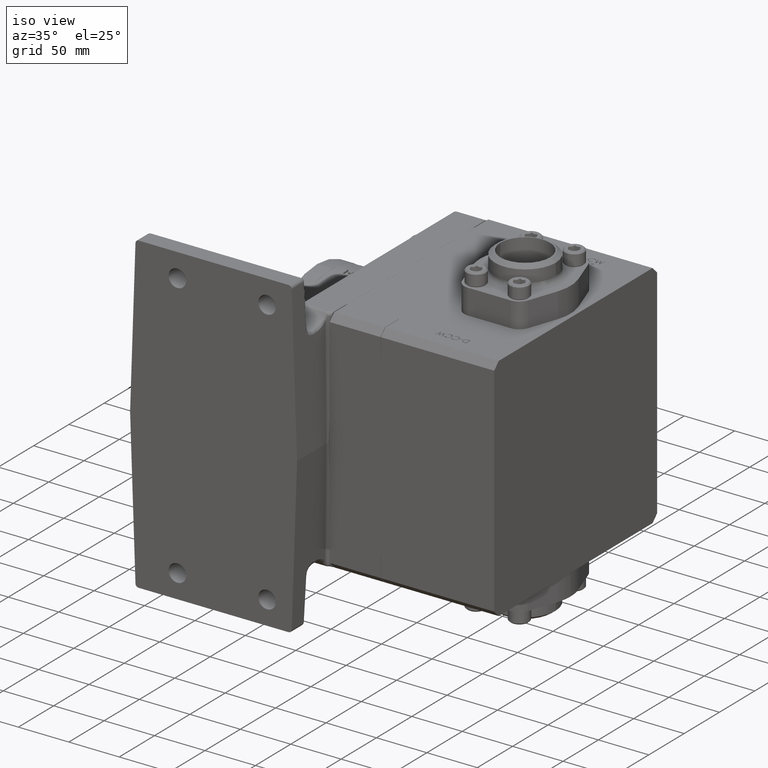
[diagram: clean part render]
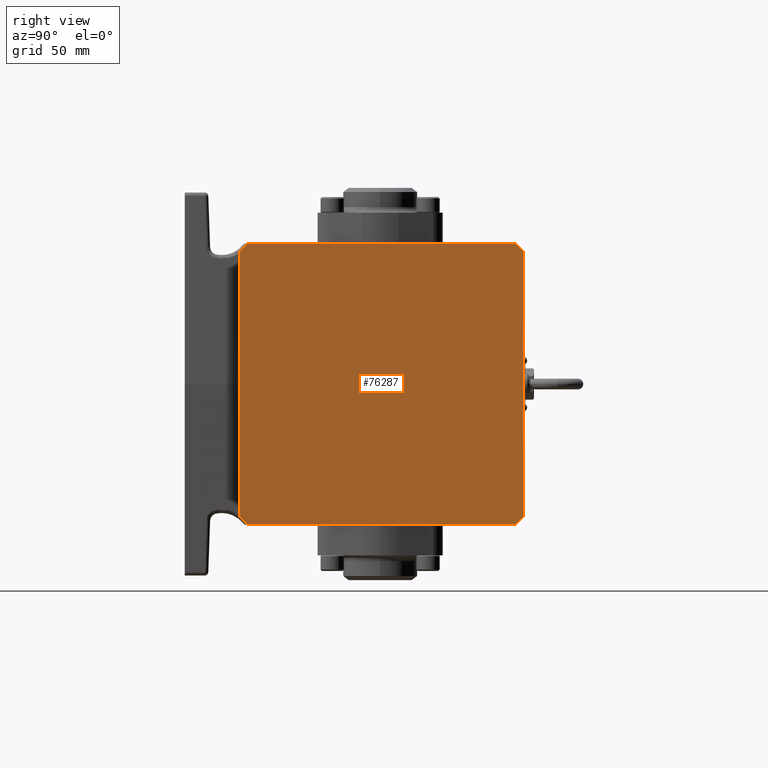
[diagram: tour spotlight — one face highlighted and labeled with its STEP entity id]
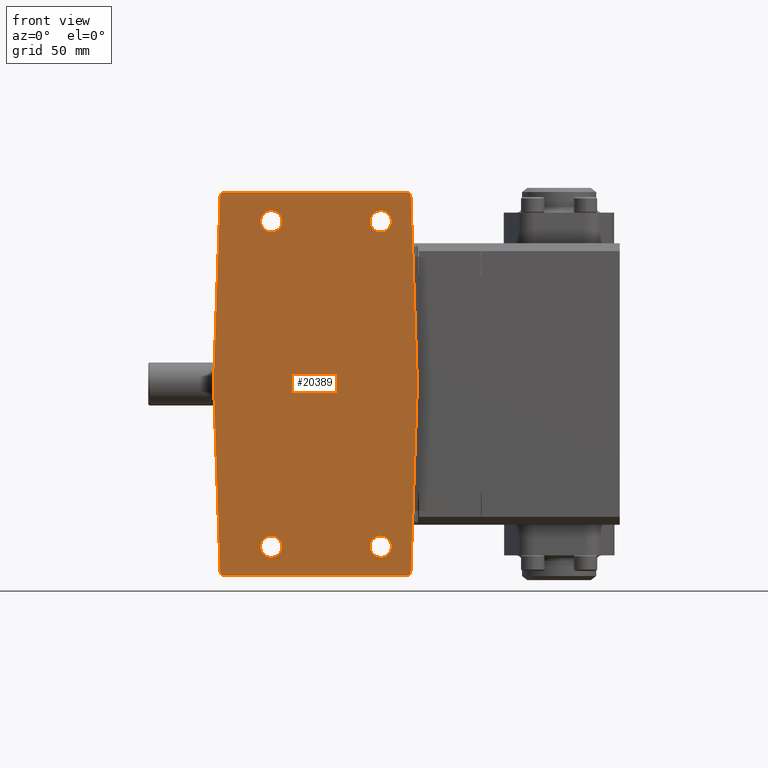
[diagram: tour spotlight — one face highlighted and labeled with its STEP entity id]
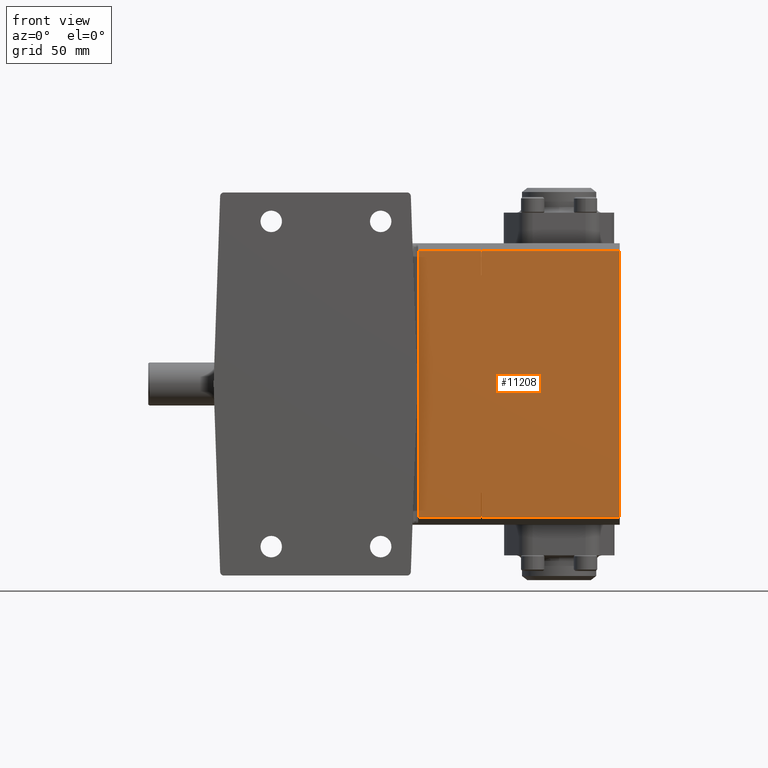
[diagram: tour spotlight — one face highlighted and labeled with its STEP entity id]
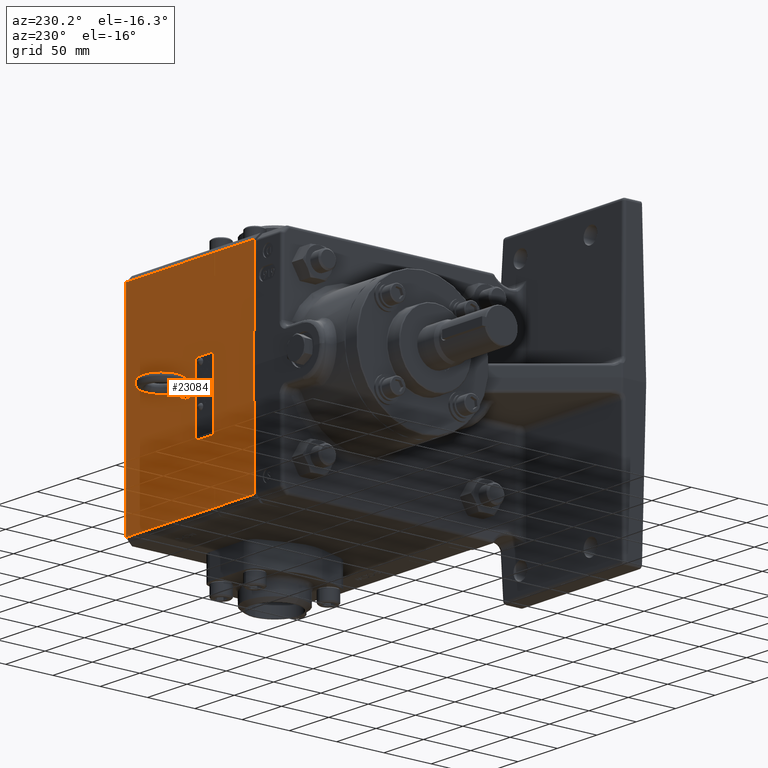
[diagram: tour spotlight — one face highlighted and labeled with its STEP entity id]
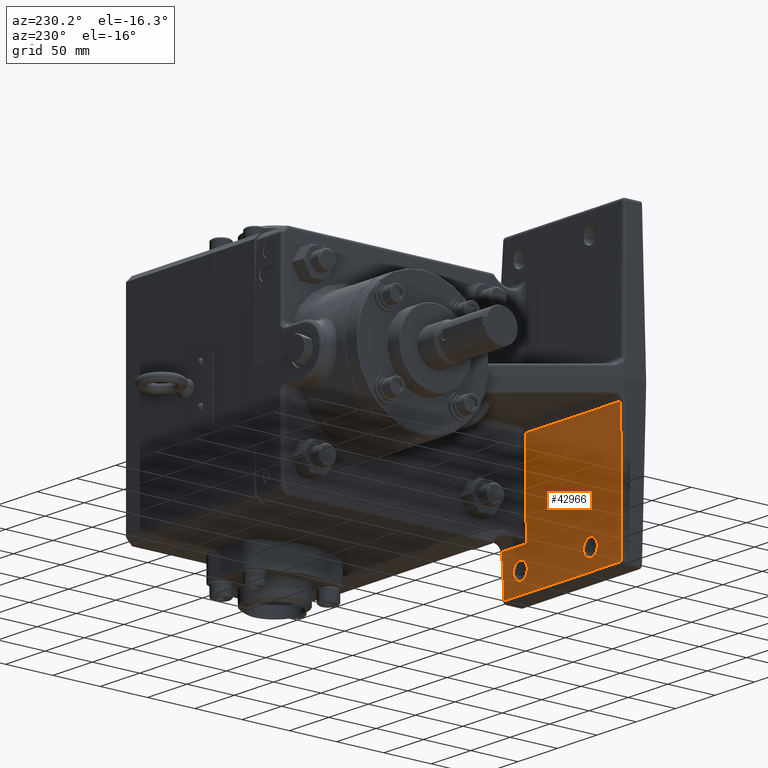
[diagram: tour spotlight — one face highlighted and labeled with its STEP entity id]
A machine part: a face-by-face anatomy tour. The part has 1905 B-rep faces; the first image is the clean iso view, then the 5 largest visible faces are spotlighted one at a time (largest first), each with its STEP entity span.

Face 1 — right view, entity #76287. In plain terms, the highlighted planar face has unit normal (1, 0, 0).
Definition (entity closure, byte-faithful):
#2612 = CARTESIAN_POINT ( 'NONE',  ( 6.434500000000001700, 3.079999999999999200, -4.249999999999998200 ) ) ;
#7589 = VERTEX_POINT ( 'NONE', #32884 ) ;
#8641 = CARTESIAN_POINT ( 'NONE',  ( 6.434500000000001700, -5.999999999999999100, -4.249999999999998200 ) ) ;
#9835 = VECTOR ( 'NONE', #26408, 39.37007874015748900 ) ;
#10267 = VECTOR ( 'NONE', #94038, 39.37007874015748100 ) ;
#16767 = CARTESIAN_POINT ( 'NONE',  ( 6.434500000000001700, 3.079999999999999200, 4.250000000000001800 ) ) ;
#16867 = ORIENTED_EDGE ( 'NONE', *, *, #94484, .T. ) ;
#16973 = DIRECTION ( 'NONE',  ( -0.0000000000000000000, 1.000000000000000000, -0.0000000000000000000 ) ) ;
#18905 = VECTOR ( 'NONE', #24239, 39.37007874015748900 ) ;
#19349 = EDGE_CURVE ( 'Defeatured_0_963+Defeatured_0_1085+Defeatured_0_842+Defeatured_0_840', #82032, #86548, #74199, .T. ) ;
#24239 = DIRECTION ( 'NONE',  ( 0.0000000000000000000, 0.7071067811865497900, 0.7071067811865451300 ) ) ;
#24385 = DIRECTION ( 'NONE',  ( -0.0000000000000000000, -0.0000000000000000000, 1.000000000000000000 ) ) ;
#25834 = LINE ( 'NONE', #61149, #83699 ) ;
#26408 = DIRECTION ( 'NONE',  ( 0.0000000000000000000, -0.7071067811865459100, -0.7071067811865490200 ) ) ;
#28173 = ORIENTED_EDGE ( 'NONE', *, *, #68953, .T. ) ;
#28625 = EDGE_CURVE ( 'Defeatured_0_963+Defeatured_0_964+Defeatured_0_0+Defeatured_0_837', #74707, #34177, #58742, .T. ) ;
#29122 = VECTOR ( 'NONE', #24385, 39.37007874015748100 ) ;
#29909 = CARTESIAN_POINT ( 'NONE',  ( 6.434500000000001700, -1.460000000000000900, 8.790000000000020500 ) ) ;
#30396 = LINE ( 'NONE', #92498, #9835 ) ;
#32884 = CARTESIAN_POINT ( 'NONE',  ( 6.434500000000001700, -5.750000000000000900, 4.500000000000000000 ) ) ;
#33023 = CARTESIAN_POINT ( 'NONE',  ( 6.434500000000001700, -5.999999999999999100, -4.249999999999998200 ) ) ;
#34177 = VERTEX_POINT ( 'NONE', #83659 ) ;
#34820 = CARTESIAN_POINT ( 'NONE',  ( 6.434500000000001700, -5.749999999999996400, -4.500000000000000000 ) ) ;
#36098 = AXIS2_PLACEMENT_3D ( 'NONE', #29909, #100021, #92195 ) ;
#39382 = CARTESIAN_POINT ( 'NONE',  ( 6.434500000000001700, 2.829999999999996500, -4.500000000000000000 ) ) ;
#40377 = LINE ( 'NONE', #39382, #63244 ) ;
#40782 = LINE ( 'NONE', #79133, #18905 ) ;
#41646 = CARTESIAN_POINT ( 'NONE',  ( 6.434500000000001700, 3.079999999999999200, 4.250000000000001800 ) ) ;
#41994 = DIRECTION ( 'NONE',  ( 0.0000000000000000000, -0.7071067811865459100, 0.7071067811865490200 ) ) ;
#42756 = VERTEX_POINT ( 'NONE', #49086 ) ;
#43680 = VECTOR ( 'NONE', #84204, 39.37007874015748100 ) ;
#45709 = CARTESIAN_POINT ( 'NONE',  ( 6.434500000000001700, -5.999999999999999100, -4.249999999999998200 ) ) ;
#49086 = CARTESIAN_POINT ( 'NONE',  ( 6.434500000000001700, -6.000000000000001800, 4.249999999999999100 ) ) ;
#53337 = ORIENTED_EDGE ( 'NONE', *, *, #80829, .T. ) ;
#58742 = LINE ( 'NONE', #41646, #91272 ) ;
#61149 = CARTESIAN_POINT ( 'NONE',  ( 6.434500000000001700, 2.830000000000001800, 4.500000000000000000 ) ) ;
#61241 = PLANE ( 'NONE',  #36098 ) ;
#62238 = VERTEX_POINT ( 'NONE', #91287 ) ;
#62891 = LINE ( 'NONE', #78952, #29122 ) ;
#63244 = VECTOR ( 'NONE', #16973, 39.37007874015748100 ) ;
#63828 = EDGE_CURVE ( 'Defeatured_0_963+Defeatured_0_962+Defeatured_0_837+Defeatured_0_842', #7589, #42756, #30396, .T. ) ;
#64125 = LINE ( 'NONE', #8641, #43680 ) ;
#66005 = VERTEX_POINT ( 'NONE', #2612 ) ;
#68953 = EDGE_CURVE ( 'Defeatured_0_963+Defeatured_0_837+Defeatured_0_964+Defeatured_0_962', #34177, #7589, #25834, .T. ) ;
#69850 = DIRECTION ( 'NONE',  ( 0.0000000000000000000, -1.000000000000000000, 0.0000000000000000000 ) ) ;
#71922 = EDGE_LOOP ( 'NONE', ( #85012, #28173, #84895, #91881, #94061, #16867, #75060, #53337 ) ) ;
#72559 = EDGE_CURVE ( 'Defeatured_0_963+Defeatured_0_1079+Defeatured_0_840+Defeatured_0_0', #62238, #66005, #40782, .T. ) ;
#74199 = LINE ( 'NONE', #33023, #10267 ) ;
#74707 = VERTEX_POINT ( 'NONE', #16767 ) ;
#75060 = ORIENTED_EDGE ( 'NONE', *, *, #72559, .T. ) ;
#76287 = ADVANCED_FACE ( 'Defeatured_0_963', ( #98172 ), #61241, .T. ) ;
#78952 = CARTESIAN_POINT ( 'NONE',  ( 6.434500000000001700, 3.079999999999999200, 4.250000000000001800 ) ) ;
#79133 = CARTESIAN_POINT ( 'NONE',  ( 6.434500000000001700, 2.829999999999996500, -4.500000000000000000 ) ) ;
#80829 = EDGE_CURVE ( 'Defeatured_0_963+Defeatured_0_0+Defeatured_0_1079+Defeatured_0_964', #66005, #74707, #62891, .T. ) ;
#82032 = VERTEX_POINT ( 'NONE', #45709 ) ;
#83659 = CARTESIAN_POINT ( 'NONE',  ( 6.434500000000001700, 2.830000000000001800, 4.500000000000000000 ) ) ;
#83699 = VECTOR ( 'NONE', #69850, 39.37007874015748100 ) ;
#84204 = DIRECTION ( 'NONE',  ( -0.0000000000000000000, 1.285575526430241900E-016, -1.000000000000000000 ) ) ;
#84795 = EDGE_CURVE ( 'Defeatured_0_963+Defeatured_0_842+Defeatured_0_962+Defeatured_0_1085', #42756, #82032, #64125, .T. ) ;
#84895 = ORIENTED_EDGE ( 'NONE', *, *, #63828, .T. ) ;
#85012 = ORIENTED_EDGE ( 'NONE', *, *, #28625, .T. ) ;
#86548 = VERTEX_POINT ( 'NONE', #34820 ) ;
#91272 = VECTOR ( 'NONE', #41994, 39.37007874015748900 ) ;
#91287 = CARTESIAN_POINT ( 'NONE',  ( 6.434500000000001700, 2.829999999999996500, -4.500000000000000000 ) ) ;
#91881 = ORIENTED_EDGE ( 'NONE', *, *, #84795, .T. ) ;
#92195 = DIRECTION ( 'NONE',  ( 0.0000000000000000000, 0.0000000000000000000, -1.000000000000000000 ) ) ;
#92498 = CARTESIAN_POINT ( 'NONE',  ( 6.434500000000001700, -5.750000000000000900, 4.500000000000000000 ) ) ;
#94038 = DIRECTION ( 'NONE',  ( 0.0000000000000000000, 0.7071067811865490200, -0.7071067811865460200 ) ) ;
#94061 = ORIENTED_EDGE ( 'NONE', *, *, #19349, .T. ) ;
#94484 = EDGE_CURVE ( 'Defeatured_0_963+Defeatured_0_840+Defeatured_0_1085+Defeatured_0_1079', #86548, #62238, #40377, .T. ) ;
#98172 = FACE_OUTER_BOUND ( 'NONE', #71922, .T. ) ;
#100021 = DIRECTION ( 'NONE',  ( 1.000000000000000000, 0.0000000000000000000, 0.0000000000000000000 ) ) ;

Face 2 — front view, entity #20389. In plain terms, the highlighted planar face has unit normal (-0, 1, 0).
Definition (entity closure, byte-faithful):
#87 = AXIS2_PLACEMENT_3D ( 'NONE', #39778, #55225, #32295 ) ;
#501 = EDGE_CURVE ( 'Defeatured_0_1671+Defeatured_0_845+Defeatured_0_845+Defeatured_0_845', #35023, #36547, #44396, .T. ) ;
#806 = VERTEX_POINT ( 'NONE', #31280 ) ;
#2040 = DIRECTION ( 'NONE',  ( -0.0000000000000000000, -1.000000000000000000, -0.0000000000000000000 ) ) ;
#2259 = EDGE_CURVE ( 'Defeatured_0_1673+Defeatured_0_845+Defeatured_0_845+Defeatured_0_845', #9334, #36012, #31691, .T. ) ;
#2339 = AXIS2_PLACEMENT_3D ( 'NONE', #90994, #91339, #75813 ) ;
#2768 = CIRCLE ( 'NONE', #24458, 0.3437499999999998300 ) ;
#3049 = ORIENTED_EDGE ( 'NONE', *, *, #72982, .T. ) ;
#3416 = ORIENTED_EDGE ( 'NONE', *, *, #49282, .T. ) ;
#3967 = VECTOR ( 'NONE', #89806, 39.37007874015748100 ) ;
#4501 = CARTESIAN_POINT ( 'NONE',  ( -8.118642960852330500, -7.750000000000000000, -6.125000000000000000 ) ) ;
#5442 = AXIS2_PLACEMENT_3D ( 'NONE', #97683, #89519, #89196 ) ;
#5796 = ORIENTED_EDGE ( 'NONE', *, *, #73551, .F. ) ;
#6552 = LINE ( 'NONE', #70355, #12612 ) ;
#6746 = LINE ( 'NONE', #19564, #86414 ) ;
#7645 = EDGE_LOOP ( 'NONE', ( #33487, #20993 ) ) ;
#9334 = VERTEX_POINT ( 'NONE', #60141 ) ;
#10304 = AXIS2_PLACEMENT_3D ( 'NONE', #37037, #97686, #51811 ) ;
#11297 = AXIS2_PLACEMENT_3D ( 'NONE', #65506, #27772, #42672 ) ;
#12612 = VECTOR ( 'NONE', #15755, 39.37007874015748100 ) ;
#13441 = CARTESIAN_POINT ( 'NONE',  ( -0.3658826529768486900, -7.750000000000000000, 6.004999999999999900 ) ) ;
#13527 = CARTESIAN_POINT ( 'NONE',  ( -4.710000000000000000, -7.750000000000000000, 5.200000000000000200 ) ) ;
#14720 = EDGE_CURVE ( 'Defeatured_0_845+Defeatured_0_1205+Defeatured_0_1204+Defeatured_0_1206', #51747, #97066, #50669, .T. ) ;
#15348 = DIRECTION ( 'NONE',  ( 0.0000000000000000000, -1.000000000000000000, -0.0000000000000000000 ) ) ;
#15421 = AXIS2_PLACEMENT_3D ( 'NONE', #64395, #2040, #80193 ) ;
#15755 = DIRECTION ( 'NONE',  ( -0.03489949670250104600, 0.0000000000000000000, -0.9993908270190957600 ) ) ;
#16278 = VERTEX_POINT ( 'NONE', #34554 ) ;
#16443 = VECTOR ( 'NONE', #34079, 39.37007874015748100 ) ;
#16544 = EDGE_CURVE ( 'Defeatured_0_845+Defeatured_0_848+Defeatured_0_786+Defeatured_0_1201', #63685, #21498, #61124, .T. ) ;
#16737 = CARTESIAN_POINT ( 'NONE',  ( -1.210000000000000000, -7.750000000000000000, -5.543750000000000200 ) ) ;
#17379 = CARTESIAN_POINT ( 'NONE',  ( -4.710000000000000000, -7.750000000000000000, -5.543750000000000200 ) ) ;
#17829 = CARTESIAN_POINT ( 'NONE',  ( -8.118642960852330500, -7.750000000000000000, 6.125000000000000000 ) ) ;
#18901 = VERTEX_POINT ( 'NONE', #64799 ) ;
#19564 = CARTESIAN_POINT ( 'NONE',  ( -0.2499999999999998100, -7.750000000000000000, -6.125000000000000000 ) ) ;
#20371 = ORIENTED_EDGE ( 'NONE', *, *, #85819, .T. ) ;
#20389 = ADVANCED_FACE ( 'Defeatured_0_845', ( #86046, #55954, #94548, #76382, #49955 ), #90907, .F. ) ;
#20993 = ORIENTED_EDGE ( 'NONE', *, *, #2259, .F. ) ;
#21498 = VERTEX_POINT ( 'NONE', #45988 ) ;
#22276 = CARTESIAN_POINT ( 'NONE',  ( -1.209999999999999700, -7.750000000000000000, 4.856250000000000200 ) ) ;
#23557 = CARTESIAN_POINT ( 'NONE',  ( -0.2459557537345572200, -7.750000000000000000, -6.009187939604300900 ) ) ;
#24024 = EDGE_CURVE ( 'Defeatured_0_845+Defeatured_0_787+Defeatured_0_849+Defeatured_0_786', #87687, #82800, #6746, .T. ) ;
#24458 = AXIS2_PLACEMENT_3D ( 'NONE', #66730, #90634, #28322 ) ;
#24617 = CIRCLE ( 'NONE', #10304, 0.3437499999999998300 ) ;
#25634 = DIRECTION ( 'NONE',  ( -0.03489949670250104600, -0.0000000000000000000, 0.9993908270190957600 ) ) ;
#25787 = ORIENTED_EDGE ( 'NONE', *, *, #82721, .T. ) ;
#26057 = VECTOR ( 'NONE', #33863, 39.37007874015748100 ) ;
#27530 = CIRCLE ( 'NONE', #15421, 0.3437499999999998300 ) ;
#27772 = DIRECTION ( 'NONE',  ( -0.0000000000000000000, -1.000000000000000000, -0.0000000000000000000 ) ) ;
#27901 = AXIS2_PLACEMENT_3D ( 'NONE', #61912, #15348, #38044 ) ;
#28260 = CARTESIAN_POINT ( 'NONE',  ( -8.118642960852330500, -7.750000000000000000, -6.125000000000000000 ) ) ;
#28322 = DIRECTION ( 'NONE',  ( 0.0000000000000000000, 0.0000000000000000000, -1.000000000000000000 ) ) ;
#28423 = CIRCLE ( 'NONE', #87, 0.1199999999999998200 ) ;
#29300 = VERTEX_POINT ( 'NONE', #36315 ) ;
#31280 = CARTESIAN_POINT ( 'NONE',  ( -1.210000000000000000, -7.750000000000000000, -4.856250000000000200 ) ) ;
#31691 = CIRCLE ( 'NONE', #5442, 0.3437499999999998300 ) ;
#32295 = DIRECTION ( 'NONE',  ( 0.0000000000000000000, 0.0000000000000000000, 1.000000000000000000 ) ) ;
#33487 = ORIENTED_EDGE ( 'NONE', *, *, #61511, .F. ) ;
#33863 = DIRECTION ( 'NONE',  ( 0.03489949670250104600, 0.0000000000000000000, -0.9993908270190957600 ) ) ;
#34079 = DIRECTION ( 'NONE',  ( -1.000000000000000000, -0.0000000000000000000, -0.0000000000000000000 ) ) ;
#34554 = CARTESIAN_POINT ( 'NONE',  ( -6.344044246265442100, -7.750000000000000000, 6.009187939604300900 ) ) ;
#34848 = DIRECTION ( 'NONE',  ( 0.03489949670250104600, 0.0000000000000000000, 0.9993908270190957600 ) ) ;
#35023 = VERTEX_POINT ( 'NONE', #77116 ) ;
#35105 = EDGE_LOOP ( 'NONE', ( #47908, #25787, #3049, #40319, #40919, #66084, #91049, #20371, #58116, #3416 ) ) ;
#36012 = VERTEX_POINT ( 'NONE', #22276 ) ;
#36315 = CARTESIAN_POINT ( 'NONE',  ( -6.553889713136954700, -7.750000000000000000, 1.092739197465705300E-015 ) ) ;
#36547 = VERTEX_POINT ( 'NONE', #17379 ) ;
#36731 = CIRCLE ( 'NONE', #2339, 0.3437499999999998300 ) ;
#37037 = CARTESIAN_POINT ( 'NONE',  ( -1.210000000000000000, -7.750000000000000000, -5.200000000000000200 ) ) ;
#37110 = LINE ( 'NONE', #17829, #16443 ) ;
#37360 = EDGE_CURVE ( 'Defeatured_0_845+Defeatured_0_1203+Defeatured_0_1202+Defeatured_0_1204', #16278, #29300, #6552, .T. ) ;
#37896 = LINE ( 'NONE', #55692, #41485 ) ;
#38044 = DIRECTION ( 'NONE',  ( 0.0000000000000000000, 0.0000000000000000000, 1.000000000000000000 ) ) ;
#39778 = CARTESIAN_POINT ( 'NONE',  ( -6.224117347023150300, -7.750000000000000000, 6.004999999999999900 ) ) ;
#40054 = ORIENTED_EDGE ( 'NONE', *, *, #501, .F. ) ;
#40077 = VERTEX_POINT ( 'NONE', #79507 ) ;
#40319 = ORIENTED_EDGE ( 'NONE', *, *, #37360, .T. ) ;
#40504 = VERTEX_POINT ( 'NONE', #47775 ) ;
#40919 = ORIENTED_EDGE ( 'NONE', *, *, #91714, .T. ) ;
#41245 = EDGE_LOOP ( 'NONE', ( #80457, #40054 ) ) ;
#41485 = VECTOR ( 'NONE', #25634, 39.37007874015748100 ) ;
#42513 = CARTESIAN_POINT ( 'NONE',  ( -4.710000000000000000, -7.750000000000000000, -5.200000000000000200 ) ) ;
#42672 = DIRECTION ( 'NONE',  ( 0.0000000000000000000, 0.0000000000000000000, -1.000000000000000000 ) ) ;
#42854 = EDGE_CURVE ( 'Defeatured_0_1674+Defeatured_0_845+Defeatured_0_845+Defeatured_0_845', #40504, #40077, #91918, .T. ) ;
#44160 = DIRECTION ( 'NONE',  ( 0.0000000000000000000, -0.0000000000000000000, 1.000000000000000000 ) ) ;
#44396 = CIRCLE ( 'NONE', #68685, 0.3437499999999998300 ) ;
#45988 = CARTESIAN_POINT ( 'NONE',  ( -0.3658826529768486900, -7.750000000000000000, 6.125000000000000000 ) ) ;
#46107 = EDGE_LOOP ( 'NONE', ( #95489, #98663 ) ) ;
#46565 = LINE ( 'NONE', #79924, #26057 ) ;
#47775 = CARTESIAN_POINT ( 'NONE',  ( -4.710000000000000000, -7.750000000000000000, 4.856250000000000200 ) ) ;
#47908 = ORIENTED_EDGE ( 'NONE', *, *, #16544, .T. ) ;
#49282 = EDGE_CURVE ( 'Defeatured_0_845+Defeatured_0_786+Defeatured_0_787+Defeatured_0_848', #82800, #63685, #37896, .T. ) ;
#49955 = FACE_OUTER_BOUND ( 'NONE', #35105, .T. ) ;
#50669 = CIRCLE ( 'NONE', #96113, 0.1199999999999998200 ) ;
#51072 = AXIS2_PLACEMENT_3D ( 'NONE', #13441, #59672, #60016 ) ;
#51747 = VERTEX_POINT ( 'NONE', #74004 ) ;
#51811 = DIRECTION ( 'NONE',  ( 0.0000000000000000000, 0.0000000000000000000, -1.000000000000000000 ) ) ;
#53961 = VERTEX_POINT ( 'NONE', #16737 ) ;
#55225 = DIRECTION ( 'NONE',  ( 0.0000000000000000000, -1.000000000000000000, -0.0000000000000000000 ) ) ;
#55692 = CARTESIAN_POINT ( 'NONE',  ( -0.2499999999999998100, -7.750000000000000000, 6.125000000000000000 ) ) ;
#55954 = FACE_BOUND ( 'NONE', #41245, .T. ) ;
#58116 = ORIENTED_EDGE ( 'NONE', *, *, #24024, .T. ) ;
#59672 = DIRECTION ( 'NONE',  ( 0.0000000000000000000, -1.000000000000000000, -0.0000000000000000000 ) ) ;
#60016 = DIRECTION ( 'NONE',  ( -1.138269997360111400E-015, 0.0000000000000000000, 1.000000000000000000 ) ) ;
#60141 = CARTESIAN_POINT ( 'NONE',  ( -1.209999999999999700, -7.750000000000000000, 5.543750000000000200 ) ) ;
#61124 = CIRCLE ( 'NONE', #51072, 0.1199999999999998200 ) ;
#61511 = EDGE_CURVE ( 'Defeatured_0_1673+Defeatured_0_845+Defeatured_0_845+Defeatured_0_845', #36012, #9334, #2768, .T. ) ;
#61912 = CARTESIAN_POINT ( 'NONE',  ( -0.3658826529768486900, -7.750000000000000000, -6.004999999999999900 ) ) ;
#63685 = VERTEX_POINT ( 'NONE', #65368 ) ;
#64386 = VERTEX_POINT ( 'NONE', #69361 ) ;
#64395 = CARTESIAN_POINT ( 'NONE',  ( -4.710000000000000000, -7.750000000000000000, -5.200000000000000200 ) ) ;
#64799 = CARTESIAN_POINT ( 'NONE',  ( -6.224117347023150300, -7.750000000000000000, 6.125000000000000000 ) ) ;
#64812 = AXIS2_PLACEMENT_3D ( 'NONE', #13527, #74545, #67473 ) ;
#65368 = CARTESIAN_POINT ( 'NONE',  ( -0.2459557537345572200, -7.750000000000000000, 6.009187939604300900 ) ) ;
#65506 = CARTESIAN_POINT ( 'NONE',  ( -4.710000000000000000, -7.750000000000000000, 5.200000000000000200 ) ) ;
#65701 = EDGE_LOOP ( 'NONE', ( #79396, #5796 ) ) ;
#65734 = CIRCLE ( 'NONE', #64812, 0.3437499999999998300 ) ;
#66084 = ORIENTED_EDGE ( 'NONE', *, *, #14720, .T. ) ;
#66350 = CARTESIAN_POINT ( 'NONE',  ( -6.224117347023150300, -7.750000000000000000, -6.125000000000000000 ) ) ;
#66730 = CARTESIAN_POINT ( 'NONE',  ( -1.209999999999999700, -7.750000000000000000, 5.200000000000000200 ) ) ;
#67473 = DIRECTION ( 'NONE',  ( 0.0000000000000000000, 0.0000000000000000000, -1.000000000000000000 ) ) ;
#68685 = AXIS2_PLACEMENT_3D ( 'NONE', #42513, #96421, #80816 ) ;
#69361 = CARTESIAN_POINT ( 'NONE',  ( -0.3658826529768486900, -7.750000000000000000, -6.125000000000000000 ) ) ;
#69469 = AXIS2_PLACEMENT_3D ( 'NONE', #28260, #97738, #44160 ) ;
#70355 = CARTESIAN_POINT ( 'NONE',  ( -6.339999999999999900, -7.750000000000000000, 6.125000000000000000 ) ) ;
#72982 = EDGE_CURVE ( 'Defeatured_0_845+Defeatured_0_1202+Defeatured_0_1201+Defeatured_0_1203', #18901, #16278, #28423, .T. ) ;
#73551 = EDGE_CURVE ( 'Defeatured_0_1674+Defeatured_0_845+Defeatured_0_845+Defeatured_0_845', #40077, #40504, #65734, .T. ) ;
#74004 = CARTESIAN_POINT ( 'NONE',  ( -6.344044246265442100, -7.750000000000000000, -6.009187939604300900 ) ) ;
#74545 = DIRECTION ( 'NONE',  ( -0.0000000000000000000, -1.000000000000000000, -0.0000000000000000000 ) ) ;
#75813 = DIRECTION ( 'NONE',  ( 0.0000000000000000000, 0.0000000000000000000, -1.000000000000000000 ) ) ;
#76382 = FACE_BOUND ( 'NONE', #7645, .T. ) ;
#77116 = CARTESIAN_POINT ( 'NONE',  ( -4.710000000000000000, -7.750000000000000000, -4.856250000000000200 ) ) ;
#78749 = EDGE_CURVE ( 'Defeatured_0_1671+Defeatured_0_845+Defeatured_0_845+Defeatured_0_845', #36547, #35023, #27530, .T. ) ;
#79396 = ORIENTED_EDGE ( 'NONE', *, *, #42854, .F. ) ;
#79507 = CARTESIAN_POINT ( 'NONE',  ( -4.710000000000000000, -7.750000000000000000, 5.543750000000000200 ) ) ;
#79548 = CARTESIAN_POINT ( 'NONE',  ( -6.224117347023150300, -7.750000000000000000, -6.004999999999999900 ) ) ;
#79611 = EDGE_CURVE ( 'Defeatured_0_1206+Defeatured_0_845+Defeatured_0_849+Defeatured_0_1205', #64386, #97066, #93291, .T. ) ;
#79924 = CARTESIAN_POINT ( 'NONE',  ( -6.339999999999999900, -7.750000000000000000, -6.125000000000000000 ) ) ;
#80193 = DIRECTION ( 'NONE',  ( 0.0000000000000000000, 0.0000000000000000000, -1.000000000000000000 ) ) ;
#80457 = ORIENTED_EDGE ( 'NONE', *, *, #78749, .F. ) ;
#80714 = CIRCLE ( 'NONE', #27901, 0.1199999999999998200 ) ;
#80816 = DIRECTION ( 'NONE',  ( 0.0000000000000000000, 0.0000000000000000000, -1.000000000000000000 ) ) ;
#82721 = EDGE_CURVE ( 'Defeatured_0_845+Defeatured_0_1201+Defeatured_0_848+Defeatured_0_1202', #21498, #18901, #37110, .T. ) ;
#82800 = VERTEX_POINT ( 'NONE', #89942 ) ;
#83923 = EDGE_CURVE ( 'Defeatured_0_1672+Defeatured_0_845+Defeatured_0_845+Defeatured_0_845', #806, #53961, #24617, .T. ) ;
#85819 = EDGE_CURVE ( 'Defeatured_0_845+Defeatured_0_849+Defeatured_0_1206+Defeatured_0_787', #64386, #87687, #80714, .T. ) ;
#86046 = FACE_BOUND ( 'NONE', #46107, .T. ) ;
#86414 = VECTOR ( 'NONE', #34848, 39.37007874015748100 ) ;
#87687 = VERTEX_POINT ( 'NONE', #23557 ) ;
#87990 = DIRECTION ( 'NONE',  ( 0.0000000000000000000, 0.0000000000000000000, 1.000000000000000000 ) ) ;
#89196 = DIRECTION ( 'NONE',  ( 0.0000000000000000000, 0.0000000000000000000, -1.000000000000000000 ) ) ;
#89519 = DIRECTION ( 'NONE',  ( -0.0000000000000000000, -1.000000000000000000, -0.0000000000000000000 ) ) ;
#89806 = DIRECTION ( 'NONE',  ( -1.000000000000000000, -0.0000000000000000000, -0.0000000000000000000 ) ) ;
#89942 = CARTESIAN_POINT ( 'NONE',  ( -0.03611028686304448100, -7.750000000000000000, 1.092739197465705300E-015 ) ) ;
#90634 = DIRECTION ( 'NONE',  ( -0.0000000000000000000, -1.000000000000000000, -0.0000000000000000000 ) ) ;
#90907 = PLANE ( 'NONE',  #69469 ) ;
#90994 = CARTESIAN_POINT ( 'NONE',  ( -1.210000000000000000, -7.750000000000000000, -5.200000000000000200 ) ) ;
#91049 = ORIENTED_EDGE ( 'NONE', *, *, #79611, .F. ) ;
#91339 = DIRECTION ( 'NONE',  ( -0.0000000000000000000, -1.000000000000000000, -0.0000000000000000000 ) ) ;
#91714 = EDGE_CURVE ( 'Defeatured_0_845+Defeatured_0_1204+Defeatured_0_1203+Defeatured_0_1205', #29300, #51747, #46565, .T. ) ;
#91918 = CIRCLE ( 'NONE', #11297, 0.3437499999999998300 ) ;
#93291 = LINE ( 'NONE', #4501, #3967 ) ;
#94548 = FACE_BOUND ( 'NONE', #65701, .T. ) ;
#95165 = DIRECTION ( 'NONE',  ( 0.0000000000000000000, -1.000000000000000000, -0.0000000000000000000 ) ) ;
#95489 = ORIENTED_EDGE ( 'NONE', *, *, #98716, .F. ) ;
#96113 = AXIS2_PLACEMENT_3D ( 'NONE', #79548, #95165, #87990 ) ;
#96421 = DIRECTION ( 'NONE',  ( -0.0000000000000000000, -1.000000000000000000, -0.0000000000000000000 ) ) ;
#97066 = VERTEX_POINT ( 'NONE', #66350 ) ;
#97683 = CARTESIAN_POINT ( 'NONE',  ( -1.209999999999999700, -7.750000000000000000, 5.200000000000000200 ) ) ;
#97686 = DIRECTION ( 'NONE',  ( -0.0000000000000000000, -1.000000000000000000, -0.0000000000000000000 ) ) ;
#97738 = DIRECTION ( 'NONE',  ( -0.0000000000000000000, 1.000000000000000000, 0.0000000000000000000 ) ) ;
#98663 = ORIENTED_EDGE ( 'NONE', *, *, #83923, .F. ) ;
#98716 = EDGE_CURVE ( 'Defeatured_0_1672+Defeatured_0_845+Defeatured_0_845+Defeatured_0_845', #53961, #806, #36731, .T. ) ;

Face 3 — front view, entity #11208. In plain terms, the highlighted planar face has unit normal (-0, 1, 0).
Definition (entity closure, byte-faithful):
#1060 = CARTESIAN_POINT ( 'NONE',  ( 0.01500000000000107000, -6.000000000000000900, 4.249999999999998200 ) ) ;
#1774 = VECTOR ( 'NONE', #21770, 39.37007874015748100 ) ;
#1835 = LINE ( 'NONE', #19314, #6615 ) ;
#2410 = CARTESIAN_POINT ( 'NONE',  ( 2.009500000000001000, -5.999999999999999100, -4.249999999999998200 ) ) ;
#3815 = CARTESIAN_POINT ( 'NONE',  ( 2.009500000000001000, -6.000000000000001800, 4.540000000000000000 ) ) ;
#4371 = ORIENTED_EDGE ( 'NONE', *, *, #13935, .F. ) ;
#6615 = VECTOR ( 'NONE', #35949, 39.37007874015748100 ) ;
#6700 = ORIENTED_EDGE ( 'NONE', *, *, #84037, .F. ) ;
#7771 = EDGE_CURVE ( 'Defeatured_0_1087+Defeatured_0_842+Defeatured_0_1086+Defeatured_0_1082', #15351, #96205, #1835, .T. ) ;
#7854 = VERTEX_POINT ( 'NONE', #12914 ) ;
#8341 = PLANE ( 'NONE',  #51208 ) ;
#8641 = CARTESIAN_POINT ( 'NONE',  ( 6.434500000000001700, -5.999999999999999100, -4.249999999999998200 ) ) ;
#8919 = ORIENTED_EDGE ( 'NONE', *, *, #84795, .F. ) ;
#9621 = CARTESIAN_POINT ( 'NONE',  ( 0.01500000000000109200, -5.999999999999999100, 3.479482720175515200 ) ) ;
#9729 = CARTESIAN_POINT ( 'NONE',  ( 2.090000000000000700, -6.000000000000000900, 4.540000000000000000 ) ) ;
#9870 = DIRECTION ( 'NONE',  ( -0.0000000000000000000, 1.285575526430241600E-016, -1.000000000000000000 ) ) ;
#10673 = CARTESIAN_POINT ( 'NONE',  ( 1.092739197465705300E-015, -5.999999999999998200, -3.479482720175516500 ) ) ;
#10989 = LINE ( 'NONE', #62871, #37585 ) ;
#11151 = ORIENTED_EDGE ( 'NONE', *, *, #25889, .T. ) ;
#11208 = ADVANCED_FACE ( 'Defeatured_0_842', ( #23865 ), #8341, .F. ) ;
#11280 = DIRECTION ( 'NONE',  ( 0.0000000000000000000, -1.203457265931393600E-016, 1.000000000000000000 ) ) ;
#11682 = LINE ( 'NONE', #62355, #97344 ) ;
#12102 = VECTOR ( 'NONE', #11280, 39.37007874015748100 ) ;
#12772 = ORIENTED_EDGE ( 'NONE', *, *, #84325, .F. ) ;
#12914 = CARTESIAN_POINT ( 'NONE',  ( 2.009500000000001000, -6.000000000000001800, 3.479482720175513900 ) ) ;
#13192 = CARTESIAN_POINT ( 'NONE',  ( 1.996500000000001300, -5.999999999999999100, -3.479482720175515200 ) ) ;
#13739 = CARTESIAN_POINT ( 'NONE',  ( 2.009500000000001000, -6.000000000000001800, 4.249999999999999100 ) ) ;
#13935 = EDGE_CURVE ( 'Defeatured_0_841+Defeatured_0_842+Defeatured_0_1084+Defeatured_0_784', #54700, #91057, #19494, .T. ) ;
#15351 = VERTEX_POINT ( 'NONE', #43659 ) ;
#16166 = EDGE_CURVE ( 'Defeatured_0_959+Defeatured_0_842+Defeatured_0_958+Defeatured_0_960', #29161, #78987, #10989, .T. ) ;
#17767 = VERTEX_POINT ( 'NONE', #50144 ) ;
#19314 = CARTESIAN_POINT ( 'NONE',  ( 2.009500000000001000, -5.999999999999999100, -3.479482720175514700 ) ) ;
#19494 = LINE ( 'NONE', #64726, #78582 ) ;
#19662 = VECTOR ( 'NONE', #77329, 39.37007874015748100 ) ;
#20350 = VERTEX_POINT ( 'NONE', #13739 ) ;
#20844 = VECTOR ( 'NONE', #73886, 39.37007874015748100 ) ;
#21359 = EDGE_CURVE ( 'Defeatured_0_1086+Defeatured_0_842+Defeatured_0_1085+Defeatured_0_1087', #26016, #15351, #70021, .T. ) ;
#21770 = DIRECTION ( 'NONE',  ( 0.0000000000000000000, -1.203457265931393600E-016, 1.000000000000000000 ) ) ;
#22826 = LINE ( 'NONE', #73341, #55459 ) ;
#23865 = FACE_OUTER_BOUND ( 'NONE', #30457, .T. ) ;
#24482 = EDGE_CURVE ( 'Defeatured_0_961+Defeatured_0_842+Defeatured_0_960+Defeatured_0_962', #7854, #20350, #82598, .T. ) ;
#25785 = CARTESIAN_POINT ( 'NONE',  ( 1.092739197465705300E-015, -5.999999999999999100, -4.540000000000000900 ) ) ;
#25889 = EDGE_CURVE ( 'Defeatured_0_842+Defeatured_0_1085+Defeatured_0_1086+Defeatured_0_963', #26016, #82032, #95427, .T. ) ;
#26016 = VERTEX_POINT ( 'NONE', #2410 ) ;
#26159 = ORIENTED_EDGE ( 'NONE', *, *, #86827, .T. ) ;
#26340 = VECTOR ( 'NONE', #53540, 39.37007874015748100 ) ;
#27591 = CARTESIAN_POINT ( 'NONE',  ( 1.996500000000001300, -5.999999999999999100, -4.250000000000000000 ) ) ;
#28086 = CARTESIAN_POINT ( 'NONE',  ( 0.01500000000000107000, -6.000000000000000900, 4.540000000000000000 ) ) ;
#28304 = CARTESIAN_POINT ( 'NONE',  ( 1.996500000000001300, -6.000000000000000900, 3.479482720175514300 ) ) ;
#28442 = VECTOR ( 'NONE', #74933, 39.37007874015748100 ) ;
#29161 = VERTEX_POINT ( 'NONE', #66266 ) ;
#30457 = EDGE_LOOP ( 'NONE', ( #42857, #26159, #6700, #79981, #60260, #4371, #12772, #66742, #68093, #69700, #86608, #11151, #8919, #69203, #40959, #72881 ) ) ;
#31196 = VERTEX_POINT ( 'NONE', #1060 ) ;
#31479 = CARTESIAN_POINT ( 'NONE',  ( 6.489500000000000500, -5.999999999999999100, -4.249999999999998200 ) ) ;
#31817 = EDGE_CURVE ( 'Defeatured_0_842+Defeatured_0_1083+Defeatured_0_1084+Defeatured_0_1082', #17767, #99322, #36928, .T. ) ;
#34268 = VECTOR ( 'NONE', #79692, 39.37007874015748100 ) ;
#35949 = DIRECTION ( 'NONE',  ( -1.000000000000000000, -0.0000000000000000000, -0.0000000000000000000 ) ) ;
#36928 = LINE ( 'NONE', #51746, #28442 ) ;
#37585 = VECTOR ( 'NONE', #9870, 39.37007874015748100 ) ;
#37870 = LINE ( 'NONE', #75984, #19662 ) ;
#37943 = DIRECTION ( 'NONE',  ( 1.000000000000000000, 0.0000000000000000000, 0.0000000000000000000 ) ) ;
#40615 = VECTOR ( 'NONE', #57723, 39.37007874015748100 ) ;
#40959 = ORIENTED_EDGE ( 'NONE', *, *, #24482, .F. ) ;
#42756 = VERTEX_POINT ( 'NONE', #49086 ) ;
#42857 = ORIENTED_EDGE ( 'NONE', *, *, #16166, .F. ) ;
#43659 = CARTESIAN_POINT ( 'NONE',  ( 2.009500000000001000, -5.999999999999999100, -3.479482720175514700 ) ) ;
#43680 = VECTOR ( 'NONE', #84204, 39.37007874015748100 ) ;
#43821 = DIRECTION ( 'NONE',  ( -0.0000000000000000000, 1.285575526430241600E-016, -1.000000000000000000 ) ) ;
#45118 = CARTESIAN_POINT ( 'NONE',  ( 2.009500000000001000, -6.000000000000001800, 4.540000000000000000 ) ) ;
#45709 = CARTESIAN_POINT ( 'NONE',  ( 6.434500000000001700, -5.999999999999999100, -4.249999999999998200 ) ) ;
#46611 = VECTOR ( 'NONE', #43821, 39.37007874015748100 ) ;
#49086 = CARTESIAN_POINT ( 'NONE',  ( 6.434500000000001700, -6.000000000000001800, 4.249999999999999100 ) ) ;
#50144 = CARTESIAN_POINT ( 'NONE',  ( 0.01500000000000188900, -5.999999999999999100, -4.250000000000000000 ) ) ;
#51208 = AXIS2_PLACEMENT_3D ( 'NONE', #9729, #79831, #56660 ) ;
#51746 = CARTESIAN_POINT ( 'NONE',  ( 2.090000000000000700, -5.999999999999999100, -4.250000000000000000 ) ) ;
#53540 = DIRECTION ( 'NONE',  ( 1.000000000000000000, 0.0000000000000000000, 0.0000000000000000000 ) ) ;
#54700 = VERTEX_POINT ( 'NONE', #90941 ) ;
#55459 = VECTOR ( 'NONE', #73654, 39.37007874015748100 ) ;
#56660 = DIRECTION ( 'NONE',  ( 0.0000000000000000000, -1.203457265931393600E-016, 1.000000000000000000 ) ) ;
#57027 = CARTESIAN_POINT ( 'NONE',  ( 1.994500000000000800, -6.000000000000001800, 4.249999999999999100 ) ) ;
#57055 = LINE ( 'NONE', #28086, #20844 ) ;
#57723 = DIRECTION ( 'NONE',  ( -1.000000000000000000, 0.0000000000000000000, 0.0000000000000000000 ) ) ;
#58863 = LINE ( 'NONE', #83487, #26340 ) ;
#60260 = ORIENTED_EDGE ( 'NONE', *, *, #94649, .T. ) ;
#62355 = CARTESIAN_POINT ( 'NONE',  ( 2.090000000000000700, -6.000000000000000900, 4.249999999999998200 ) ) ;
#62743 = EDGE_CURVE ( 'Defeatured_0_843+Defeatured_0_842+Defeatured_0_784+Defeatured_0_957', #89464, #91040, #22826, .T. ) ;
#62871 = CARTESIAN_POINT ( 'NONE',  ( 1.996500000000001300, -5.999999999999999100, -4.250000000000000000 ) ) ;
#63536 = LINE ( 'NONE', #27591, #46611 ) ;
#64125 = LINE ( 'NONE', #8641, #43680 ) ;
#64726 = CARTESIAN_POINT ( 'NONE',  ( 0.01500000000000109200, -5.999999999999998200, -3.479482720175516500 ) ) ;
#66266 = CARTESIAN_POINT ( 'NONE',  ( 1.996500000000001300, -6.000000000000000900, 4.249999999999998200 ) ) ;
#66426 = EDGE_CURVE ( 'Defeatured_0_842+Defeatured_0_962+Defeatured_0_963+Defeatured_0_961', #42756, #20350, #77820, .T. ) ;
#66742 = ORIENTED_EDGE ( 'NONE', *, *, #31817, .T. ) ;
#68093 = ORIENTED_EDGE ( 'NONE', *, *, #72816, .F. ) ;
#69203 = ORIENTED_EDGE ( 'NONE', *, *, #66426, .T. ) ;
#69700 = ORIENTED_EDGE ( 'NONE', *, *, #7771, .F. ) ;
#69991 = VECTOR ( 'NONE', #37943, 39.37007874015748100 ) ;
#70021 = LINE ( 'NONE', #3815, #12102 ) ;
#72816 = EDGE_CURVE ( 'Defeatured_0_1082+Defeatured_0_842+Defeatured_0_1087+Defeatured_0_1083', #96205, #99322, #63536, .T. ) ;
#72881 = ORIENTED_EDGE ( 'NONE', *, *, #92847, .F. ) ;
#73341 = CARTESIAN_POINT ( 'NONE',  ( 0.01500000000000109200, -5.999999999999999100, 3.479482720175515200 ) ) ;
#73654 = DIRECTION ( 'NONE',  ( 1.000000000000000000, 0.0000000000000000000, 0.0000000000000000000 ) ) ;
#73886 = DIRECTION ( 'NONE',  ( 0.0000000000000000000, -1.203457265931393600E-016, 1.000000000000000000 ) ) ;
#74933 = DIRECTION ( 'NONE',  ( 1.000000000000000000, 0.0000000000000000000, 0.0000000000000000000 ) ) ;
#75984 = CARTESIAN_POINT ( 'NONE',  ( 0.01500000000000107000, -6.000000000000000900, 4.540000000000000000 ) ) ;
#77133 = CARTESIAN_POINT ( 'NONE',  ( 1.092739197465705300E-015, -5.999999999999999100, 3.479482720175515200 ) ) ;
#77329 = DIRECTION ( 'NONE',  ( 0.0000000000000000000, -1.203457265931393600E-016, 1.000000000000000000 ) ) ;
#77820 = LINE ( 'NONE', #57027, #40615 ) ;
#78582 = VECTOR ( 'NONE', #96752, 39.37007874015748100 ) ;
#78987 = VERTEX_POINT ( 'NONE', #28304 ) ;
#79692 = DIRECTION ( 'NONE',  ( -0.0000000000000000000, 1.203457265931393600E-016, -1.000000000000000000 ) ) ;
#79831 = DIRECTION ( 'NONE',  ( -0.0000000000000000000, 1.000000000000000000, 1.203457265931393600E-016 ) ) ;
#79981 = ORIENTED_EDGE ( 'NONE', *, *, #62743, .F. ) ;
#82032 = VERTEX_POINT ( 'NONE', #45709 ) ;
#82598 = LINE ( 'NONE', #45118, #1774 ) ;
#83487 = CARTESIAN_POINT ( 'NONE',  ( 2.009500000000001000, -6.000000000000001800, 3.479482720175513900 ) ) ;
#84037 = EDGE_CURVE ( 'Defeatured_0_957+Defeatured_0_842+Defeatured_0_843+Defeatured_0_958', #91040, #31196, #37870, .T. ) ;
#84204 = DIRECTION ( 'NONE',  ( -0.0000000000000000000, 1.285575526430241900E-016, -1.000000000000000000 ) ) ;
#84325 = EDGE_CURVE ( 'Defeatured_0_1084+Defeatured_0_842+Defeatured_0_1083+Defeatured_0_841', #17767, #54700, #57055, .T. ) ;
#84795 = EDGE_CURVE ( 'Defeatured_0_963+Defeatured_0_842+Defeatured_0_962+Defeatured_0_1085', #42756, #82032, #64125, .T. ) ;
#85180 = DIRECTION ( 'NONE',  ( -1.000000000000000000, 0.0000000000000000000, 0.0000000000000000000 ) ) ;
#86608 = ORIENTED_EDGE ( 'NONE', *, *, #21359, .F. ) ;
#86827 = EDGE_CURVE ( 'Defeatured_0_842+Defeatured_0_958+Defeatured_0_959+Defeatured_0_957', #29161, #31196, #11682, .T. ) ;
#87277 = LINE ( 'NONE', #25785, #34268 ) ;
#89237 = CARTESIAN_POINT ( 'NONE',  ( 1.996500000000001300, -5.999999999999999100, -4.250000000000000000 ) ) ;
#89464 = VERTEX_POINT ( 'NONE', #77133 ) ;
#90941 = CARTESIAN_POINT ( 'NONE',  ( 0.01500000000000109200, -5.999999999999998200, -3.479482720175516500 ) ) ;
#91040 = VERTEX_POINT ( 'NONE', #9621 ) ;
#91057 = VERTEX_POINT ( 'NONE', #10673 ) ;
#92847 = EDGE_CURVE ( 'Defeatured_0_960+Defeatured_0_842+Defeatured_0_959+Defeatured_0_961', #78987, #7854, #58863, .T. ) ;
#94649 = EDGE_CURVE ( 'Defeatured_0_842+Defeatured_0_784+Defeatured_0_843+Defeatured_0_841', #89464, #91057, #87277, .T. ) ;
#95427 = LINE ( 'NONE', #31479, #69991 ) ;
#96205 = VERTEX_POINT ( 'NONE', #13192 ) ;
#96752 = DIRECTION ( 'NONE',  ( -1.000000000000000000, -0.0000000000000000000, -0.0000000000000000000 ) ) ;
#97344 = VECTOR ( 'NONE', #85180, 39.37007874015748100 ) ;
#99322 = VERTEX_POINT ( 'NONE', #89237 ) ;

Face 4 — auxiliary view, entity #23084. In plain terms, the highlighted planar face has unit normal (0, -1, 0).
Definition (entity closure, byte-faithful):
#185 = ORIENTED_EDGE ( 'NONE', *, *, #59926, .F. ) ;
#1191 = ORIENTED_EDGE ( 'NONE', *, *, #5801, .F. ) ;
#1291 = CARTESIAN_POINT ( 'NONE',  ( 2.009500000000001000, 3.079999999999999200, 4.250000000000001800 ) ) ;
#1324 = ORIENTED_EDGE ( 'NONE', *, *, #26363, .F. ) ;
#1576 = VERTEX_POINT ( 'NONE', #88825 ) ;
#2472 = AXIS2_PLACEMENT_3D ( 'NONE', #34492, #11833, #72182 ) ;
#2612 = CARTESIAN_POINT ( 'NONE',  ( 6.434500000000001700, 3.079999999999999200, -4.249999999999998200 ) ) ;
#3087 = EDGE_LOOP ( 'NONE', ( #22027, #55898, #91718, #77823, #52553, #62081, #69345, #44198, #19600, #36970, #1324, #97646, #5355, #62467, #71197, #185 ) ) ;
#3440 = EDGE_CURVE ( 'Defeatured_0_2+Defeatured_0_0+Defeatured_0_9+Defeatured_0_3', #52662, #60100, #97612, .T. ) ;
#3706 = EDGE_CURVE ( 'Defeatured_0_839+Defeatured_0_0+Defeatured_0_784+Defeatured_0_1078', #4840, #57925, #46815, .T. ) ;
#3839 = CARTESIAN_POINT ( 'NONE',  ( 0.01500000000000107000, 3.080000000000000100, -4.250000000000000900 ) ) ;
#3965 = CARTESIAN_POINT ( 'NONE',  ( 2.090000000000000700, 3.080000000000000100, -4.250000000000000900 ) ) ;
#4003 = EDGE_LOOP ( 'NONE', ( #18957, #79077, #16519, #58624, #15404, #1191, #96709, #12570 ) ) ;
#4536 = DIRECTION ( 'NONE',  ( 4.437342591868191400E-031, 1.000000000000000000, -1.700029006457160800E-016 ) ) ;
#4840 = VERTEX_POINT ( 'NONE', #27668 ) ;
#4972 = VERTEX_POINT ( 'NONE', #13082 ) ;
#4993 = EDGE_CURVE ( 'Defeatured_0_1078+Defeatured_0_0+Defeatured_0_839+Defeatured_0_1077', #57925, #15794, #77762, .T. ) ;
#5281 = VERTEX_POINT ( 'NONE', #80632 ) ;
#5302 = VERTEX_POINT ( 'NONE', #81628 ) ;
#5325 = PLANE ( 'NONE',  #87040 ) ;
#5355 = ORIENTED_EDGE ( 'NONE', *, *, #80829, .F. ) ;
#5673 = DIRECTION ( 'NONE',  ( 0.0000000000000000000, -1.000000000000000000, 0.0000000000000000000 ) ) ;
#5801 = EDGE_CURVE ( 'Defeatured_0_6+Defeatured_0_0+Defeatured_0_5+Defeatured_0_7', #97312, #6263, #94490, .T. ) ;
#6263 = VERTEX_POINT ( 'NONE', #15045 ) ;
#6716 = DIRECTION ( 'NONE',  ( 0.0000000000000000000, 0.0000000000000000000, -1.000000000000000000 ) ) ;
#7181 = CARTESIAN_POINT ( 'NONE',  ( 1.996500000000001300, 3.080000000000000100, 4.250000000000000000 ) ) ;
#8717 = LINE ( 'NONE', #52259, #19593 ) ;
#9166 = DIRECTION ( 'NONE',  ( -1.000000000000000000, 3.697785493223492800E-031, -8.326672684688674100E-017 ) ) ;
#9332 = EDGE_CURVE ( 'Defeatured_0_0+Defeatured_0_1664+Defeatured_0_1664+Defeatured_0_1664', #99426, #88241, #68364, .T. ) ;
#10134 = CARTESIAN_POINT ( 'NONE',  ( 0.01500000000000109200, 3.080000000000000100, 3.479482720175514700 ) ) ;
#10563 = LINE ( 'NONE', #25786, #58880 ) ;
#10578 = CARTESIAN_POINT ( 'NONE',  ( 0.01500000000000109200, 3.080000000000000100, -3.479482720175514700 ) ) ;
#10720 = AXIS2_PLACEMENT_3D ( 'NONE', #41616, #63483, #17214 ) ;
#11439 = EDGE_LOOP ( 'NONE', ( #76373, #11768 ) ) ;
#11452 = CARTESIAN_POINT ( 'NONE',  ( 3.374499999999999800, 3.080000000000000100, 0.0000000000000000000 ) ) ;
#11768 = ORIENTED_EDGE ( 'NONE', *, *, #9332, .T. ) ;
#11833 = DIRECTION ( 'NONE',  ( 4.437342591868191400E-031, 1.000000000000000000, -1.700029006457160800E-016 ) ) ;
#11954 = FACE_BOUND ( 'NONE', #4003, .T. ) ;
#12455 = DIRECTION ( 'NONE',  ( 0.0000000000000000000, -0.0000000000000000000, -1.000000000000000000 ) ) ;
#12570 = ORIENTED_EDGE ( 'NONE', *, *, #34204, .F. ) ;
#12659 = CARTESIAN_POINT ( 'NONE',  ( 2.134500000000001400, 3.079999999999999200, -1.810000000000000700 ) ) ;
#12844 = CARTESIAN_POINT ( 'NONE',  ( 0.01500000000000109200, 3.080000000000000100, -3.479482720175514700 ) ) ;
#13027 = LINE ( 'NONE', #93198, #26308 ) ;
#13082 = CARTESIAN_POINT ( 'NONE',  ( 2.134500000000001400, 3.080000000000000100, 0.9399999999999995000 ) ) ;
#13260 = CARTESIAN_POINT ( 'NONE',  ( 3.374499999999999800, 3.080000000000000100, -0.3275000000000000100 ) ) ;
#13486 = DIRECTION ( 'NONE',  ( -1.000000000000000000, 0.0000000000000000000, 0.0000000000000000000 ) ) ;
#13689 = CIRCLE ( 'NONE', #2472, 0.05999999999999990800 ) ;
#14923 = LINE ( 'NONE', #49409, #76434 ) ;
#15045 = CARTESIAN_POINT ( 'NONE',  ( 2.954500000000001700, 3.080000000000000100, 0.8799999999999994500 ) ) ;
#15215 = DIRECTION ( 'NONE',  ( 0.0000000000000000000, 0.0000000000000000000, -1.000000000000000000 ) ) ;
#15404 = ORIENTED_EDGE ( 'NONE', *, *, #43837, .F. ) ;
#15794 = VERTEX_POINT ( 'NONE', #3839 ) ;
#15993 = EDGE_CURVE ( 'Defeatured_0_0+Defeatured_0_964+Defeatured_0_965+Defeatured_0_963', #67349, #74707, #18811, .T. ) ;
#16156 = LINE ( 'NONE', #75897, #52399 ) ;
#16445 = EDGE_CURVE ( 'Defeatured_0_0+Defeatured_0_1077+Defeatured_0_1076+Defeatured_0_1078', #70752, #15794, #42414, .T. ) ;
#16519 = ORIENTED_EDGE ( 'NONE', *, *, #77435, .F. ) ;
#16767 = CARTESIAN_POINT ( 'NONE',  ( 6.434500000000001700, 3.079999999999999200, 4.250000000000001800 ) ) ;
#17214 = DIRECTION ( 'NONE',  ( -1.000000000000000000, 0.0000000000000000000, 0.0000000000000000000 ) ) ;
#18811 = LINE ( 'NONE', #57538, #77887 ) ;
#18957 = ORIENTED_EDGE ( 'NONE', *, *, #52055, .F. ) ;
#19593 = VECTOR ( 'NONE', #53249, 39.37007874015748100 ) ;
#19600 = ORIENTED_EDGE ( 'NONE', *, *, #79511, .F. ) ;
#20360 = CARTESIAN_POINT ( 'NONE',  ( 2.074500000000001300, 3.080000000000000100, 0.8799999999999994500 ) ) ;
#21231 = CARTESIAN_POINT ( 'NONE',  ( 2.090000000000000700, 3.080000000000000100, 4.540000000000000000 ) ) ;
#21789 = VECTOR ( 'NONE', #57984, 39.37007874015748100 ) ;
#22027 = ORIENTED_EDGE ( 'NONE', *, *, #72160, .F. ) ;
#23084 = ADVANCED_FACE ( 'Defeatured_0_0', ( #11954, #80698, #73461 ), #5325, .F. ) ;
#23765 = DIRECTION ( 'NONE',  ( -0.0000000000000000000, -0.0000000000000000000, 1.000000000000000000 ) ) ;
#23825 = EDGE_CURVE ( 'Defeatured_0_0+Defeatured_0_784+Defeatured_0_839+Defeatured_0_838', #4840, #1576, #25027, .T. ) ;
#24385 = DIRECTION ( 'NONE',  ( -0.0000000000000000000, -0.0000000000000000000, 1.000000000000000000 ) ) ;
#25027 = LINE ( 'NONE', #60514, #99833 ) ;
#25126 = LINE ( 'NONE', #7181, #84168 ) ;
#25786 = CARTESIAN_POINT ( 'NONE',  ( 2.009500000000001000, 3.079999999999998300, -3.479482720175516500 ) ) ;
#26308 = VECTOR ( 'NONE', #47066, 39.37007874015748100 ) ;
#26363 = EDGE_CURVE ( 'Defeatured_0_965+Defeatured_0_0+Defeatured_0_964+Defeatured_0_966', #67349, #92381, #8717, .T. ) ;
#27462 = DIRECTION ( 'NONE',  ( 1.000000000000000000, 0.0000000000000000000, 0.0000000000000000000 ) ) ;
#27668 = CARTESIAN_POINT ( 'NONE',  ( 1.092739197465705300E-015, 3.080000000000000100, -3.479482720175514700 ) ) ;
#29122 = VECTOR ( 'NONE', #24385, 39.37007874015748100 ) ;
#32569 = CARTESIAN_POINT ( 'NONE',  ( 2.954500000000001700, 3.080000000000000100, -1.750000000000000700 ) ) ;
#33197 = CARTESIAN_POINT ( 'NONE',  ( 2.134500000000001400, 3.079999999999999200, -1.810000000000000700 ) ) ;
#33486 = DIRECTION ( 'NONE',  ( -1.000000000000000000, -0.0000000000000000000, -0.0000000000000000000 ) ) ;
#34204 = EDGE_CURVE ( 'Defeatured_0_4+Defeatured_0_0+Defeatured_0_3+Defeatured_0_5', #59377, #4972, #84361, .T. ) ;
#34492 = CARTESIAN_POINT ( 'NONE',  ( 2.894500000000001600, 3.079999999999999200, -1.750000000000000700 ) ) ;
#34794 = DIRECTION ( 'NONE',  ( 0.0000000000000000000, 0.0000000000000000000, -1.000000000000000000 ) ) ;
#34884 = CARTESIAN_POINT ( 'NONE',  ( 0.01500000000000109200, 3.080000000000000100, 3.479482720175514700 ) ) ;
#34973 = EDGE_CURVE ( 'Defeatured_0_0+Defeatured_0_1079+Defeatured_0_963+Defeatured_0_1080', #66005, #45688, #66425, .T. ) ;
#35139 = EDGE_CURVE ( 'Defeatured_0_966+Defeatured_0_0+Defeatured_0_965+Defeatured_0_954', #92381, #97227, #57922, .T. ) ;
#35347 = CARTESIAN_POINT ( 'NONE',  ( 2.134500000000001400, 3.079999999999999200, -1.750000000000000700 ) ) ;
#35456 = CARTESIAN_POINT ( 'NONE',  ( 2.009500000000001000, 3.079999999999999200, 4.540000000000000000 ) ) ;
#36970 = ORIENTED_EDGE ( 'NONE', *, *, #35139, .F. ) ;
#37244 = CARTESIAN_POINT ( 'NONE',  ( 3.374499999999999800, 3.080000000000000100, 0.0000000000000000000 ) ) ;
#40592 = VERTEX_POINT ( 'NONE', #70638 ) ;
#41421 = CARTESIAN_POINT ( 'NONE',  ( 1.996500000000001300, 3.080000000000000100, 4.250000000000000000 ) ) ;
#41616 = CARTESIAN_POINT ( 'NONE',  ( 2.134500000000001400, 3.080000000000000100, 0.8799999999999994500 ) ) ;
#42414 = LINE ( 'NONE', #3965, #21789 ) ;
#42551 = DIRECTION ( 'NONE',  ( -0.0000000000000000000, -1.000000000000000000, -0.0000000000000000000 ) ) ;
#43837 = EDGE_CURVE ( 'Defeatured_0_7+Defeatured_0_0+Defeatured_0_6+Defeatured_0_8', #6263, #60779, #13027, .T. ) ;
#43854 = DIRECTION ( 'NONE',  ( -1.000000000000000000, 0.0000000000000000000, 0.0000000000000000000 ) ) ;
#44198 = ORIENTED_EDGE ( 'NONE', *, *, #66314, .T. ) ;
#44686 = CARTESIAN_POINT ( 'NONE',  ( 2.074500000000001300, 3.080000000000000100, -1.750000000000000700 ) ) ;
#45688 = VERTEX_POINT ( 'NONE', #95146 ) ;
#46008 = EDGE_CURVE ( 'Defeatured_0_5+Defeatured_0_0+Defeatured_0_4+Defeatured_0_6', #4972, #97312, #78618, .T. ) ;
#46815 = LINE ( 'NONE', #10578, #92618 ) ;
#47066 = DIRECTION ( 'NONE',  ( 8.326672684688674100E-017, -1.700029006457161300E-016, -1.000000000000000000 ) ) ;
#48594 = VECTOR ( 'NONE', #9166, 39.37007874015748100 ) ;
#49056 = DIRECTION ( 'NONE',  ( 1.000000000000000000, 0.0000000000000000000, 0.0000000000000000000 ) ) ;
#49196 = CARTESIAN_POINT ( 'NONE',  ( 2.009500000000001000, 3.079999999999998300, 3.479482720175516500 ) ) ;
#49409 = CARTESIAN_POINT ( 'NONE',  ( 2.074500000000000900, 3.080000000000000100, 0.8799999999999994500 ) ) ;
#49780 = DIRECTION ( 'NONE',  ( -0.0000000000000000000, -0.0000000000000000000, 1.000000000000000000 ) ) ;
#51087 = DIRECTION ( 'NONE',  ( 1.000000000000000000, 0.0000000000000000000, -0.0000000000000000000 ) ) ;
#52055 = EDGE_CURVE ( 'Defeatured_0_3+Defeatured_0_0+Defeatured_0_2+Defeatured_0_4', #60100, #59377, #14923, .T. ) ;
#52259 = CARTESIAN_POINT ( 'NONE',  ( 2.009500000000001000, 3.079999999999999200, 4.540000000000000000 ) ) ;
#52399 = VECTOR ( 'NONE', #15215, 39.37007874015748100 ) ;
#52482 = CARTESIAN_POINT ( 'NONE',  ( 3.374499999999999800, 3.080000000000000100, 0.3275000000000000100 ) ) ;
#52516 = AXIS2_PLACEMENT_3D ( 'NONE', #11452, #42551, #34794 ) ;
#52553 = ORIENTED_EDGE ( 'NONE', *, *, #23825, .T. ) ;
#52662 = VERTEX_POINT ( 'NONE', #12659 ) ;
#53079 = DIRECTION ( 'NONE',  ( -0.0000000000000000000, -0.0000000000000000000, 1.000000000000000000 ) ) ;
#53249 = DIRECTION ( 'NONE',  ( 0.0000000000000000000, 0.0000000000000000000, -1.000000000000000000 ) ) ;
#53838 = CARTESIAN_POINT ( 'NONE',  ( 1.996500000000000600, 3.079999999999998700, 3.479482720175515600 ) ) ;
#55324 = AXIS2_PLACEMENT_3D ( 'NONE', #37244, #99512, #6716 ) ;
#55465 = EDGE_CURVE ( 'Defeatured_0_1080+Defeatured_0_0+Defeatured_0_1081+Defeatured_0_1079', #56806, #45688, #90733, .T. ) ;
#55468 = EDGE_CURVE ( 'Defeatured_0_0+Defeatured_0_1664+Defeatured_0_1664+Defeatured_0_1664', #88241, #99426, #72101, .T. ) ;
#55898 = ORIENTED_EDGE ( 'NONE', *, *, #16445, .T. ) ;
#56806 = VERTEX_POINT ( 'NONE', #93420 ) ;
#57119 = DIRECTION ( 'NONE',  ( -8.326672684688674100E-017, 1.700029006457161300E-016, 1.000000000000000000 ) ) ;
#57424 = CARTESIAN_POINT ( 'NONE',  ( 2.009500000000001000, 3.079999999999998300, 3.479482720175516500 ) ) ;
#57538 = CARTESIAN_POINT ( 'NONE',  ( 6.489500000000000500, 3.079999999999999200, 4.250000000000001800 ) ) ;
#57689 = DIRECTION ( 'NONE',  ( 0.0000000000000000000, 0.0000000000000000000, -1.000000000000000000 ) ) ;
#57922 = LINE ( 'NONE', #49196, #90483 ) ;
#57925 = VERTEX_POINT ( 'NONE', #12844 ) ;
#57984 = DIRECTION ( 'NONE',  ( -1.000000000000000000, 0.0000000000000000000, 0.0000000000000000000 ) ) ;
#58624 = ORIENTED_EDGE ( 'NONE', *, *, #69109, .F. ) ;
#58880 = VECTOR ( 'NONE', #27462, 39.37007874015748100 ) ;
#59377 = VERTEX_POINT ( 'NONE', #20360 ) ;
#59926 = EDGE_CURVE ( 'Defeatured_0_1081+Defeatured_0_0+Defeatured_0_1076+Defeatured_0_1080', #5281, #56806, #10563, .T. ) ;
#60100 = VERTEX_POINT ( 'NONE', #44686 ) ;
#60342 = DIRECTION ( 'NONE',  ( 1.000000000000000000, -3.697785493223492800E-031, 8.326672684688674100E-017 ) ) ;
#60514 = CARTESIAN_POINT ( 'NONE',  ( 1.092739197465705300E-015, 3.080000000000000100, 4.540000000000000000 ) ) ;
#60779 = VERTEX_POINT ( 'NONE', #32569 ) ;
#62081 = ORIENTED_EDGE ( 'NONE', *, *, #66503, .F. ) ;
#62219 = VECTOR ( 'NONE', #33486, 39.37007874015748100 ) ;
#62467 = ORIENTED_EDGE ( 'NONE', *, *, #34973, .T. ) ;
#62483 = DIRECTION ( 'NONE',  ( 1.000000000000000000, 0.0000000000000000000, 0.0000000000000000000 ) ) ;
#62891 = LINE ( 'NONE', #78952, #29122 ) ;
#63124 = CARTESIAN_POINT ( 'NONE',  ( 2.090000000000000700, 3.080000000000000100, 4.250000000000000000 ) ) ;
#63483 = DIRECTION ( 'NONE',  ( 4.437342591868191400E-031, 1.000000000000000000, -1.700029006457160800E-016 ) ) ;
#63741 = VECTOR ( 'NONE', #57689, 39.37007874015748100 ) ;
#65761 = DIRECTION ( 'NONE',  ( 4.437342591868191400E-031, 1.000000000000000000, -1.700029006457160800E-016 ) ) ;
#66005 = VERTEX_POINT ( 'NONE', #2612 ) ;
#66314 = EDGE_CURVE ( 'Defeatured_0_0+Defeatured_0_955+Defeatured_0_956+Defeatured_0_954', #89360, #40592, #93636, .T. ) ;
#66358 = AXIS2_PLACEMENT_3D ( 'NONE', #35347, #4536, #81752 ) ;
#66425 = LINE ( 'NONE', #76776, #96626 ) ;
#66503 = EDGE_CURVE ( 'Defeatured_0_838+Defeatured_0_0+Defeatured_0_956+Defeatured_0_784', #80914, #1576, #80242, .T. ) ;
#67349 = VERTEX_POINT ( 'NONE', #1291 ) ;
#68364 = CIRCLE ( 'NONE', #55324, 0.3275000000000000100 ) ;
#69109 = EDGE_CURVE ( 'Defeatured_0_8+Defeatured_0_0+Defeatured_0_7+Defeatured_0_9', #60779, #5302, #13689, .T. ) ;
#69345 = ORIENTED_EDGE ( 'NONE', *, *, #75760, .F. ) ;
#70638 = CARTESIAN_POINT ( 'NONE',  ( 1.996500000000001500, 3.080000000000000100, 4.250000000000000000 ) ) ;
#70752 = VERTEX_POINT ( 'NONE', #92326 ) ;
#71197 = ORIENTED_EDGE ( 'NONE', *, *, #55465, .F. ) ;
#72101 = CIRCLE ( 'NONE', #52516, 0.3275000000000000100 ) ;
#72160 = EDGE_CURVE ( 'Defeatured_0_1076+Defeatured_0_0+Defeatured_0_1077+Defeatured_0_1081', #70752, #5281, #25126, .T. ) ;
#72182 = DIRECTION ( 'NONE',  ( -1.000000000000000000, 0.0000000000000000000, 0.0000000000000000000 ) ) ;
#72410 = AXIS2_PLACEMENT_3D ( 'NONE', #83866, #65761, #13486 ) ;
#73461 = FACE_BOUND ( 'NONE', #11439, .T. ) ;
#74412 = CARTESIAN_POINT ( 'NONE',  ( 0.01500000000000107000, 3.080000000000000100, 4.540000000000000000 ) ) ;
#74496 = CARTESIAN_POINT ( 'NONE',  ( 0.01500000000000188900, 3.080000000000000100, 4.250000000000000000 ) ) ;
#74707 = VERTEX_POINT ( 'NONE', #16767 ) ;
#75760 = EDGE_CURVE ( 'Defeatured_0_956+Defeatured_0_0+Defeatured_0_955+Defeatured_0_838', #89360, #80914, #16156, .T. ) ;
#75897 = CARTESIAN_POINT ( 'NONE',  ( 0.01500000000000107000, 3.080000000000000100, 4.540000000000000000 ) ) ;
#76373 = ORIENTED_EDGE ( 'NONE', *, *, #55468, .T. ) ;
#76434 = VECTOR ( 'NONE', #57119, 39.37007874015748100 ) ;
#76776 = CARTESIAN_POINT ( 'NONE',  ( 6.489500000000000500, 3.079999999999999200, -4.249999999999998200 ) ) ;
#77435 = EDGE_CURVE ( 'Defeatured_0_9+Defeatured_0_0+Defeatured_0_8+Defeatured_0_2', #5302, #52662, #98003, .T. ) ;
#77762 = LINE ( 'NONE', #74412, #89887 ) ;
#77823 = ORIENTED_EDGE ( 'NONE', *, *, #3706, .F. ) ;
#77887 = VECTOR ( 'NONE', #51087, 39.37007874015748100 ) ;
#78618 = LINE ( 'NONE', #90615, #89483 ) ;
#78952 = CARTESIAN_POINT ( 'NONE',  ( 6.434500000000001700, 3.079999999999999200, 4.250000000000001800 ) ) ;
#79077 = ORIENTED_EDGE ( 'NONE', *, *, #3440, .F. ) ;
#79511 = EDGE_CURVE ( 'Defeatured_0_954+Defeatured_0_0+Defeatured_0_966+Defeatured_0_955', #97227, #40592, #98166, .T. ) ;
#79762 = DIRECTION ( 'NONE',  ( -1.000000000000000000, -0.0000000000000000000, -0.0000000000000000000 ) ) ;
#80242 = LINE ( 'NONE', #10134, #62219 ) ;
#80632 = CARTESIAN_POINT ( 'NONE',  ( 1.996500000000001300, 3.080000000000000100, -3.479482720175515600 ) ) ;
#80698 = FACE_OUTER_BOUND ( 'NONE', #3087, .T. ) ;
#80829 = EDGE_CURVE ( 'Defeatured_0_963+Defeatured_0_0+Defeatured_0_1079+Defeatured_0_964', #66005, #74707, #62891, .T. ) ;
#80914 = VERTEX_POINT ( 'NONE', #34884 ) ;
#81628 = CARTESIAN_POINT ( 'NONE',  ( 2.894500000000001600, 3.080000000000000100, -1.810000000000000700 ) ) ;
#81752 = DIRECTION ( 'NONE',  ( -1.000000000000000000, 0.0000000000000000000, 0.0000000000000000000 ) ) ;
#82444 = DIRECTION ( 'NONE',  ( 0.0000000000000000000, 0.0000000000000000000, -1.000000000000000000 ) ) ;
#83866 = CARTESIAN_POINT ( 'NONE',  ( 2.894500000000001200, 3.080000000000000100, 0.8799999999999994500 ) ) ;
#84168 = VECTOR ( 'NONE', #23765, 39.37007874015748100 ) ;
#84361 = CIRCLE ( 'NONE', #10720, 0.05999999999999990800 ) ;
#86001 = VECTOR ( 'NONE', #49780, 39.37007874015748100 ) ;
#87040 = AXIS2_PLACEMENT_3D ( 'NONE', #21231, #5673, #12455 ) ;
#88241 = VERTEX_POINT ( 'NONE', #13260 ) ;
#88825 = CARTESIAN_POINT ( 'NONE',  ( 1.092739197465705300E-015, 3.080000000000000100, 3.479482720175514700 ) ) ;
#89360 = VERTEX_POINT ( 'NONE', #74496 ) ;
#89483 = VECTOR ( 'NONE', #60342, 39.37007874015748100 ) ;
#89887 = VECTOR ( 'NONE', #82444, 39.37007874015748100 ) ;
#90483 = VECTOR ( 'NONE', #79762, 39.37007874015748100 ) ;
#90615 = CARTESIAN_POINT ( 'NONE',  ( 2.134500000000001400, 3.080000000000000100, 0.9399999999999995000 ) ) ;
#90733 = LINE ( 'NONE', #35456, #63741 ) ;
#91192 = VECTOR ( 'NONE', #62483, 39.37007874015748100 ) ;
#91718 = ORIENTED_EDGE ( 'NONE', *, *, #4993, .F. ) ;
#92326 = CARTESIAN_POINT ( 'NONE',  ( 1.996500000000001300, 3.080000000000000100, -4.250000000000000900 ) ) ;
#92381 = VERTEX_POINT ( 'NONE', #57424 ) ;
#92618 = VECTOR ( 'NONE', #49056, 39.37007874015748100 ) ;
#92908 = CARTESIAN_POINT ( 'NONE',  ( 2.894500000000001200, 3.080000000000000100, 0.9399999999999995000 ) ) ;
#93198 = CARTESIAN_POINT ( 'NONE',  ( 2.954500000000001700, 3.080000000000000100, 0.8799999999999994500 ) ) ;
#93420 = CARTESIAN_POINT ( 'NONE',  ( 2.009500000000001000, 3.079999999999998300, -3.479482720175516500 ) ) ;
#93636 = LINE ( 'NONE', #63124, #91192 ) ;
#94490 = CIRCLE ( 'NONE', #72410, 0.05999999999999990800 ) ;
#95146 = CARTESIAN_POINT ( 'NONE',  ( 2.009500000000001000, 3.079999999999999200, -4.249999999999998200 ) ) ;
#96626 = VECTOR ( 'NONE', #43854, 39.37007874015748100 ) ;
#96709 = ORIENTED_EDGE ( 'NONE', *, *, #46008, .F. ) ;
#97227 = VERTEX_POINT ( 'NONE', #53838 ) ;
#97312 = VERTEX_POINT ( 'NONE', #92908 ) ;
#97612 = CIRCLE ( 'NONE', #66358, 0.05999999999999990800 ) ;
#97646 = ORIENTED_EDGE ( 'NONE', *, *, #15993, .T. ) ;
#98003 = LINE ( 'NONE', #33197, #48594 ) ;
#98166 = LINE ( 'NONE', #41421, #86001 ) ;
#99426 = VERTEX_POINT ( 'NONE', #52482 ) ;
#99512 = DIRECTION ( 'NONE',  ( -0.0000000000000000000, -1.000000000000000000, -0.0000000000000000000 ) ) ;
#99833 = VECTOR ( 'NONE', #53079, 39.37007874015748100 ) ;

Face 5 — auxiliary view, entity #42966. In plain terms, the highlighted planar face has unit normal (0, 0.9994, -0.0349).
Definition (entity closure, byte-faithful):
#3460 = ORIENTED_EDGE ( 'NONE', *, *, #90893, .F. ) ;
#6381 = VERTEX_POINT ( 'NONE', #99360 ) ;
#7518 = DIRECTION ( 'NONE',  ( 0.03487826274237469700, -0.03487826274237112300, -0.9987827659587184000 ) ) ;
#10310 = EDGE_CURVE ( 'Defeatured_0_850+Defeatured_0_859+Defeatured_0_1208+Defeatured_0_851', #11131, #99299, #34510, .T. ) ;
#11131 = VERTEX_POINT ( 'NONE', #91370 ) ;
#12271 = EDGE_LOOP ( 'NONE', ( #62322, #60961, #38505, #19016, #3460, #32893 ) ) ;
#12781 = CARTESIAN_POINT ( 'NONE',  ( -4.710000000000000000, -6.979702302732923700, -5.543750000000000200 ) ) ;
#13550 = CARTESIAN_POINT ( 'NONE',  ( -1.479022005372191600, -6.994079450958493800, -5.955457658073487300 ) ) ;
#13928 = VECTOR ( 'NONE', #23277, 39.37007874015748100 ) ;
#14484 =( BOUNDED_CURVE ( )  B_SPLINE_CURVE ( 3, ( #21615, #44303, #60755, #37241 ),
 .UNSPECIFIED., .F., .F. ) 
 B_SPLINE_CURVE_WITH_KNOTS ( ( 4, 4 ),
 ( 0.0000000000000000000, 3.141592653589793100 ),
 .UNSPECIFIED. ) 
 CURVE ( )  GEOMETRIC_REPRESENTATION_ITEM ( )  RATIONAL_B_SPLINE_CURVE ( ( 1.000000000000000000, 0.3333333333333333700, 0.3333333333333333700, 1.000000000000000000 ) ) 
 REPRESENTATION_ITEM ( '' )  );
#15585 = VERTEX_POINT ( 'NONE', #32431 ) ;
#16886 = CARTESIAN_POINT ( 'NONE',  ( -1.210000000000000000, -6.979702302732923700, -5.543750000000000200 ) ) ;
#17176 = EDGE_CURVE ( 'Defeatured_0_818+Defeatured_0_859+Defeatured_0_862+Defeatured_0_860', #65111, #45819, #60633, .T. ) ;
#19016 = ORIENTED_EDGE ( 'NONE', *, *, #17176, .F. ) ;
#21325 = DIRECTION ( 'NONE',  ( 0.0000000000000000000, -0.03489949670249745800, -0.9993908270190957600 ) ) ;
#21583 = CARTESIAN_POINT ( 'NONE',  ( -4.710000000000000000, -6.955694273707349500, -4.856250000000000200 ) ) ;
#21603 = VERTEX_POINT ( 'NONE', #16886 ) ;
#21615 = CARTESIAN_POINT ( 'NONE',  ( -1.210000000000000000, -6.979702302732923700, -5.543750000000000200 ) ) ;
#22170 = CARTESIAN_POINT ( 'NONE',  ( -1.210000000000000000, -6.955694273707349500, -4.856250000000000200 ) ) ;
#23277 = DIRECTION ( 'NONE',  ( 0.03487826274237469700, 0.03487826274237112300, 0.9987827659587184000 ) ) ;
#24873 = VERTEX_POINT ( 'NONE', #95621 ) ;
#26161 = CARTESIAN_POINT ( 'NONE',  ( -6.224117347023150300, -6.995955753734557800, -6.009187939604299100 ) ) ;
#26475 = CARTESIAN_POINT ( 'NONE',  ( -4.710000000000000000, -6.955694273707349500, -4.856250000000000200 ) ) ;
#27986 = EDGE_LOOP ( 'NONE', ( #57132, #96830 ) ) ;
#30800 = EDGE_CURVE ( 'Defeatured_0_1671+Defeatured_0_859+Defeatured_0_859+Defeatured_0_859', #15585, #91865, #72187, .T. ) ;
#32431 = CARTESIAN_POINT ( 'NONE',  ( -4.710000000000000000, -6.979702302732923700, -5.543750000000000200 ) ) ;
#32893 = ORIENTED_EDGE ( 'NONE', *, *, #10310, .F. ) ;
#33608 = CARTESIAN_POINT ( 'NONE',  ( -4.710000000000000000, -6.979702302732923700, -5.543750000000000200 ) ) ;
#34449 = CARTESIAN_POINT ( 'NONE',  ( -4.710000000000000000, -6.955694273707349500, -4.856250000000000200 ) ) ;
#34510 = LINE ( 'NONE', #46247, #13928 ) ;
#35126 = CARTESIAN_POINT ( 'NONE',  ( -4.022500000000000900, -6.979702302732924600, -5.543750000000000200 ) ) ;
#37148 = DIRECTION ( 'NONE',  ( 1.000000000000000000, 0.0000000000000000000, 0.0000000000000000000 ) ) ;
#37241 = CARTESIAN_POINT ( 'NONE',  ( -1.210000000000000000, -6.955694273707349500, -4.856250000000000200 ) ) ;
#37257 = VECTOR ( 'NONE', #99068, 39.37007874015748100 ) ;
#37267 = DIRECTION ( 'NONE',  ( 0.0000000000000000000, 0.9993908270190958700, -0.03489949670249746500 ) ) ;
#38505 = ORIENTED_EDGE ( 'NONE', *, *, #85714, .F. ) ;
#42110 = LINE ( 'NONE', #84425, #75711 ) ;
#42966 = ADVANCED_FACE ( 'Defeatured_0_859', ( #81763, #73732, #85422 ), #51707, .T. ) ;
#44303 = CARTESIAN_POINT ( 'NONE',  ( -1.897500000000000000, -6.979702302732924600, -5.543750000000000200 ) ) ;
#45819 = VERTEX_POINT ( 'NONE', #64744 ) ;
#46207 = VECTOR ( 'NONE', #53014, 39.37007874015748100 ) ;
#46247 = CARTESIAN_POINT ( 'NONE',  ( -0.3771894526440657300, -7.007262553401773200, -6.332972318693914600 ) ) ;
#48213 = LINE ( 'NONE', #74132, #94023 ) ;
#49748 = CARTESIAN_POINT ( 'NONE',  ( -1.534083927246520500, -6.939017529084170000, -4.378690517036081300 ) ) ;
#50165 = AXIS2_PLACEMENT_3D ( 'NONE', #74884, #37267, #21325 ) ;
#50485 = ORIENTED_EDGE ( 'NONE', *, *, #30800, .F. ) ;
#51059 = EDGE_CURVE ( 'Defeatured_0_1672+Defeatured_0_859+Defeatured_0_859+Defeatured_0_859', #21603, #24873, #14484, .T. ) ;
#51707 = PLANE ( 'NONE',  #50165 ) ;
#53014 = DIRECTION ( 'NONE',  ( -0.03487826274237469700, 0.03487826274237112300, 0.9987827659587184000 ) ) ;
#53225 = CARTESIAN_POINT ( 'NONE',  ( -0.5225000000000003000, -6.955694273707349500, -4.856250000000000200 ) ) ;
#57132 = ORIENTED_EDGE ( 'NONE', *, *, #51059, .F. ) ;
#57401 =( BOUNDED_CURVE ( )  B_SPLINE_CURVE ( 3, ( #22170, #53225, #77107, #76088 ),
 .UNSPECIFIED., .F., .F. ) 
 B_SPLINE_CURVE_WITH_KNOTS ( ( 4, 4 ),
 ( 3.141592653589793100, 6.283185307179586200 ),
 .UNSPECIFIED. ) 
 CURVE ( )  GEOMETRIC_REPRESENTATION_ITEM ( )  RATIONAL_B_SPLINE_CURVE ( ( 1.000000000000000000, 0.3333333333333333700, 0.3333333333333333700, 1.000000000000000000 ) ) 
 REPRESENTATION_ITEM ( '' )  );
#58974 = CARTESIAN_POINT ( 'NONE',  ( -0.3089444283264550200, -6.939017529084170000, -4.378690517036081300 ) ) ;
#60633 = LINE ( 'NONE', #13550, #46207 ) ;
#60755 = CARTESIAN_POINT ( 'NONE',  ( -1.897500000000000000, -6.955694273707349500, -4.856250000000000200 ) ) ;
#60961 = ORIENTED_EDGE ( 'NONE', *, *, #97279, .F. ) ;
#62322 = ORIENTED_EDGE ( 'NONE', *, *, #78892, .F. ) ;
#64443 = EDGE_CURVE ( 'Defeatured_0_1672+Defeatured_0_859+Defeatured_0_859+Defeatured_0_859', #24873, #21603, #57401, .T. ) ;
#64744 = CARTESIAN_POINT ( 'NONE',  ( -1.661105271668759800, -6.811996184661943200, -0.7412751258243760500 ) ) ;
#65111 = VERTEX_POINT ( 'NONE', #49748 ) ;
#66733 = DIRECTION ( 'NONE',  ( -1.000000000000000000, 0.0000000000000000000, 0.0000000000000000000 ) ) ;
#72187 =( BOUNDED_CURVE ( )  B_SPLINE_CURVE ( 3, ( #33608, #87440, #72283, #26475 ),
 .UNSPECIFIED., .F., .F. ) 
 B_SPLINE_CURVE_WITH_KNOTS ( ( 4, 4 ),
 ( 0.0000000000000000000, 3.141592653589793100 ),
 .UNSPECIFIED. ) 
 CURVE ( )  GEOMETRIC_REPRESENTATION_ITEM ( )  RATIONAL_B_SPLINE_CURVE ( ( 1.000000000000000000, 0.3333333333333333700, 0.3333333333333333700, 1.000000000000000000 ) ) 
 REPRESENTATION_ITEM ( '' )  );
#72283 = CARTESIAN_POINT ( 'NONE',  ( -5.397499999999999100, -6.955694273707349500, -4.856250000000000200 ) ) ;
#73732 = FACE_BOUND ( 'NONE', #74171, .T. ) ;
#73781 = CARTESIAN_POINT ( 'NONE',  ( -4.022500000000000900, -6.955694273707349500, -4.856250000000000200 ) ) ;
#74132 = CARTESIAN_POINT ( 'NONE',  ( -6.339999999999999900, -6.811996184661943200, -0.7412751258243761600 ) ) ;
#74171 = EDGE_LOOP ( 'NONE', ( #50485, #84568 ) ) ;
#74884 = CARTESIAN_POINT ( 'NONE',  ( -6.339999999999999900, -7.000000000000000000, -6.125000000000000000 ) ) ;
#75711 = VECTOR ( 'NONE', #7518, 39.37007874015748100 ) ;
#76088 = CARTESIAN_POINT ( 'NONE',  ( -1.210000000000000000, -6.979702302732923700, -5.543750000000000200 ) ) ;
#77107 = CARTESIAN_POINT ( 'NONE',  ( -0.5225000000000003000, -6.979702302732924600, -5.543750000000000200 ) ) ;
#78847 = EDGE_CURVE ( 'Defeatured_0_1671+Defeatured_0_859+Defeatured_0_859+Defeatured_0_859', #91865, #15585, #100087, .T. ) ;
#78892 = EDGE_CURVE ( 'Defeatured_0_1218+Defeatured_0_859+Defeatured_0_1274+Defeatured_0_1208', #87324, #11131, #93810, .T. ) ;
#81763 = FACE_BOUND ( 'NONE', #27986, .T. ) ;
#84425 = CARTESIAN_POINT ( 'NONE',  ( -6.220218991016563900, -6.999854109741144200, -6.120822249595901700 ) ) ;
#84568 = ORIENTED_EDGE ( 'NONE', *, *, #78847, .F. ) ;
#85422 = FACE_OUTER_BOUND ( 'NONE', #12271, .T. ) ;
#85714 = EDGE_CURVE ( 'Defeatured_0_1220+Defeatured_0_859+Defeatured_0_860+Defeatured_0_1273', #45819, #6381, #48213, .T. ) ;
#87324 = VERTEX_POINT ( 'NONE', #26161 ) ;
#87440 = CARTESIAN_POINT ( 'NONE',  ( -5.397499999999999100, -6.979702302732924600, -5.543750000000000200 ) ) ;
#87778 = VECTOR ( 'NONE', #37148, 39.37007874015748100 ) ;
#90893 = EDGE_CURVE ( 'Defeatured_0_1209+Defeatured_0_859+Defeatured_0_851+Defeatured_0_862', #99299, #65111, #97574, .T. ) ;
#91370 = CARTESIAN_POINT ( 'NONE',  ( -0.3658826529768486900, -6.995955753734557800, -6.009187939604299100 ) ) ;
#91865 = VERTEX_POINT ( 'NONE', #21583 ) ;
#92267 = CARTESIAN_POINT ( 'NONE',  ( -1.290265182605677700, -6.939017529084170000, -4.378690517036081300 ) ) ;
#93810 = LINE ( 'NONE', #99089, #87778 ) ;
#94023 = VECTOR ( 'NONE', #66733, 39.37007874015748100 ) ;
#95621 = CARTESIAN_POINT ( 'NONE',  ( -1.210000000000000000, -6.955694273707349500, -4.856250000000000200 ) ) ;
#96830 = ORIENTED_EDGE ( 'NONE', *, *, #64443, .F. ) ;
#97279 = EDGE_CURVE ( 'Defeatured_0_1219+Defeatured_0_859+Defeatured_0_1273+Defeatured_0_1274', #6381, #87324, #42110, .T. ) ;
#97574 = LINE ( 'NONE', #92267, #37257 ) ;
#99068 = DIRECTION ( 'NONE',  ( -1.000000000000000000, 0.0000000000000000000, 0.0000000000000000000 ) ) ;
#99089 = CARTESIAN_POINT ( 'NONE',  ( -6.339999999999999900, -6.995955753734557800, -6.009187939604299100 ) ) ;
#99299 = VERTEX_POINT ( 'NONE', #58974 ) ;
#99360 = CARTESIAN_POINT ( 'NONE',  ( -6.408076916095783600, -6.811996184661943200, -0.7412751258243761600 ) ) ;
#100087 =( BOUNDED_CURVE ( )  B_SPLINE_CURVE ( 3, ( #34449, #73781, #35126, #12781 ),
 .UNSPECIFIED., .F., .F. ) 
 B_SPLINE_CURVE_WITH_KNOTS ( ( 4, 4 ),
 ( 3.141592653589793100, 6.283185307179586200 ),
 .UNSPECIFIED. ) 
 CURVE ( )  GEOMETRIC_REPRESENTATION_ITEM ( )  RATIONAL_B_SPLINE_CURVE ( ( 1.000000000000000000, 0.3333333333333333700, 0.3333333333333333700, 1.000000000000000000 ) ) 
 REPRESENTATION_ITEM ( '' )  );